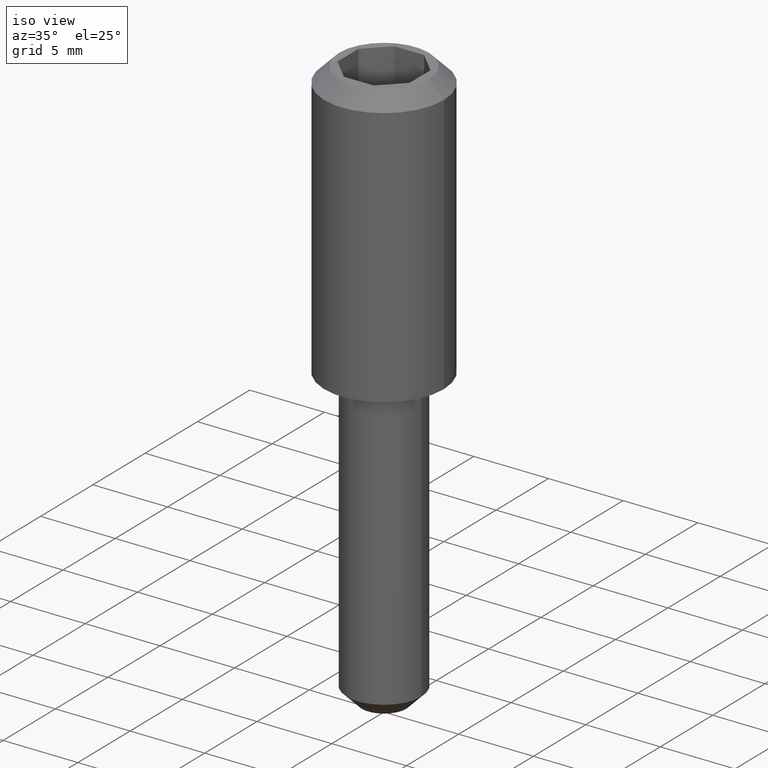
[diagram: clean part render]
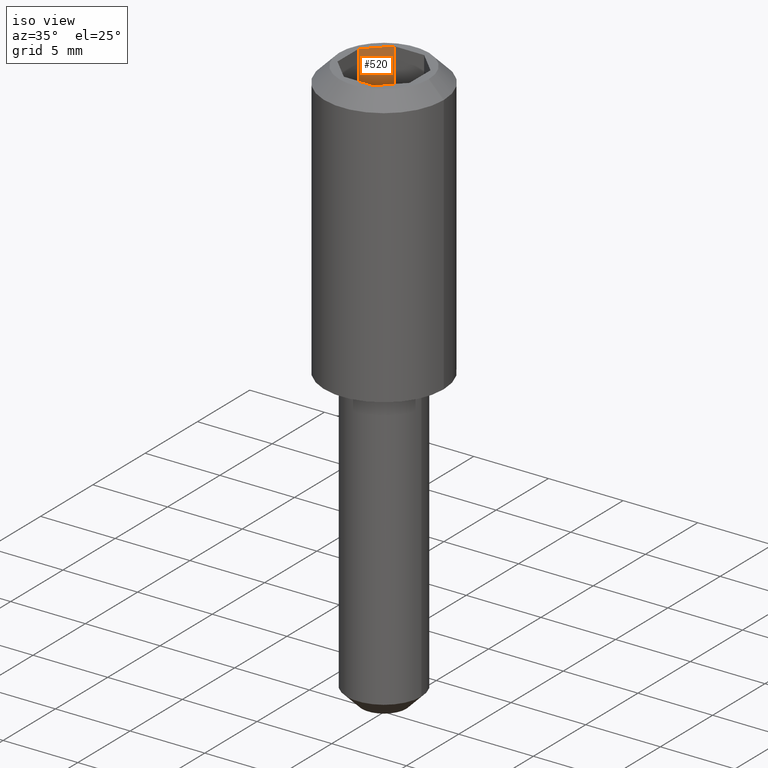
[diagram: same view with one face highlighted and labeled with its STEP entity id]
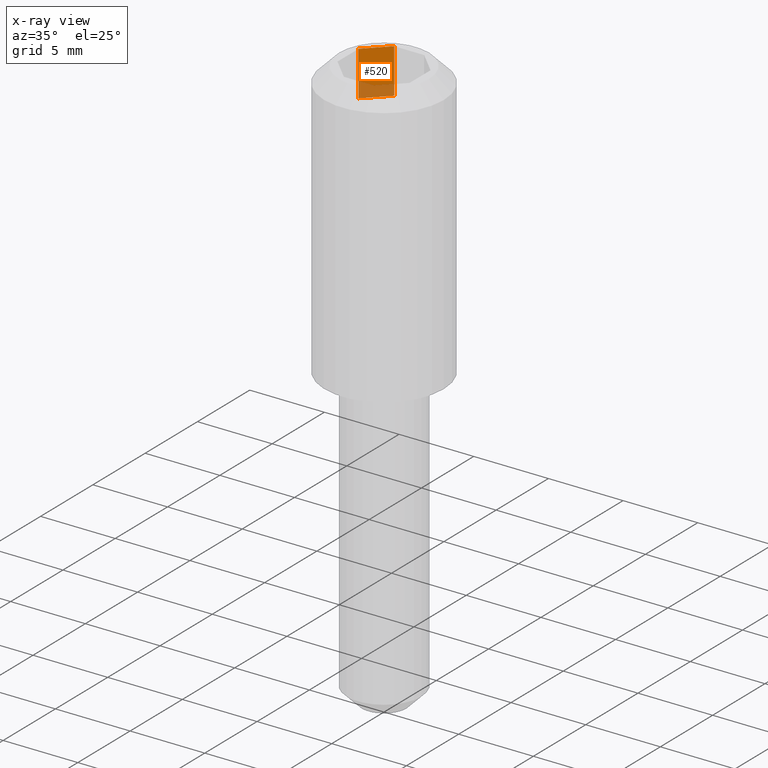
[diagram: x-ray of the same camera — body ghosted, the highlighted face saturated]
A machine part, iso view. The second image highlights one B-rep face of the part: STEP entity #520.
The next image is the same camera in x-ray: the body ghosted, the highlighted face saturated — about 26% of this face is hidden behind the body in this view.
In plain terms, the highlighted planar face has unit normal (0.7071, -0.7071, 0).
Its self-contained STEP definition (entity closure, byte-faithful):
#233=CARTESIAN_POINT('',(-2.414213562373107,1.000000000000002,18.500000000000000));
#234=VERTEX_POINT('',#233);
#241=CARTESIAN_POINT('',(-1.0,2.414213562373098,18.500000000000000));
#242=VERTEX_POINT('',#241);
#243=CARTESIAN_POINT('',(-2.414213562373099,0.999999999999995,18.500000000000000));
#244=DIRECTION('',(0.707106781186548,0.707106781186547,0.0));
#245=VECTOR('',#244,2.000000000000006);
#246=LINE('',#243,#245);
#247=EDGE_CURVE('',#234,#242,#246,.T.);
#480=CARTESIAN_POINT('',(-2.414213562373107,1.000000000000002,15.500000000000000));
#481=VERTEX_POINT('',#480);
#488=CARTESIAN_POINT('',(-2.414213562373107,1.000000000000002,15.500000000000000));
#489=DIRECTION('',(0.0,0.0,1.0));
#490=VECTOR('',#489,3.0);
#491=LINE('',#488,#490);
#492=EDGE_CURVE('',#481,#234,#491,.T.);
#497=CARTESIAN_POINT('',(-0.929289321881335,2.484924240491760,18.649999999999999));
#498=DIRECTION('',(0.707106781186547,-0.707106781186548,8.659561E-017));
#499=DIRECTION('',(-0.707106781186548,-0.707106781186547,8.659561E-017));
#500=AXIS2_PLACEMENT_3D('',#497,#498,#499);
#501=PLANE('',#500);
#502=ORIENTED_EDGE('',*,*,#247,.F.);
#503=ORIENTED_EDGE('',*,*,#492,.F.);
#504=CARTESIAN_POINT('',(-1.0,2.414213562373098,15.500000000000000));
#505=VERTEX_POINT('',#504);
#506=CARTESIAN_POINT('',(-2.414213562373099,0.999999999999995,15.500000000000000));
#507=DIRECTION('',(0.707106781186548,0.707106781186548,0.0));
#508=VECTOR('',#507,2.000000000000006);
#509=LINE('',#506,#508);
#510=EDGE_CURVE('',#481,#505,#509,.T.);
#511=ORIENTED_EDGE('',*,*,#510,.T.);
#512=CARTESIAN_POINT('',(-1.0,2.414213562373098,15.500000000000000));
#513=DIRECTION('',(0.0,0.0,1.0));
#514=VECTOR('',#513,3.0);
#515=LINE('',#512,#514);
#516=EDGE_CURVE('',#505,#242,#515,.T.);
#517=ORIENTED_EDGE('',*,*,#516,.T.);
#518=EDGE_LOOP('',(#502,#503,#511,#517));
#519=FACE_OUTER_BOUND('',#518,.T.);
#520=ADVANCED_FACE('',(#519),#501,.T.);